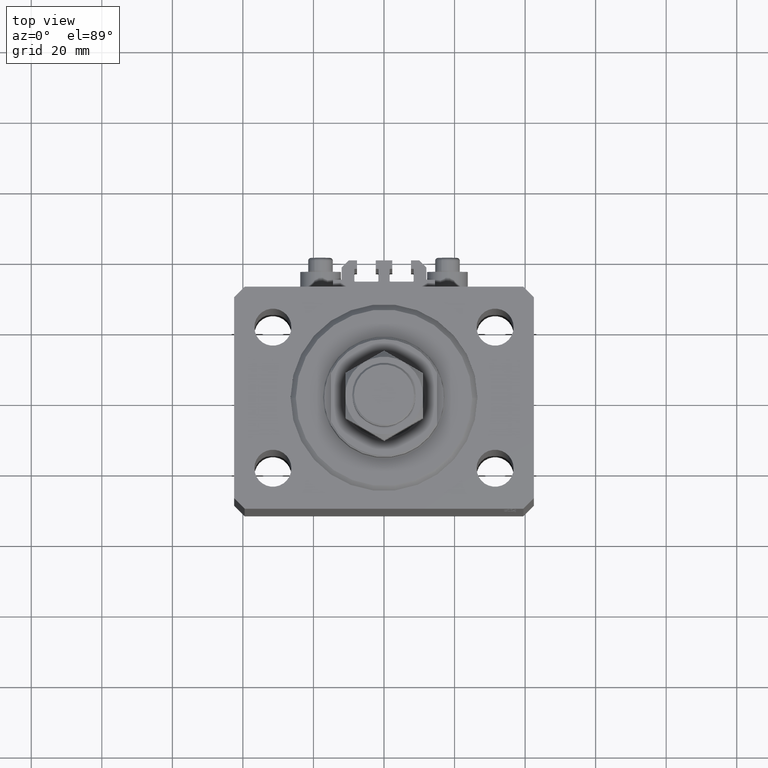
[diagram: clean part render]
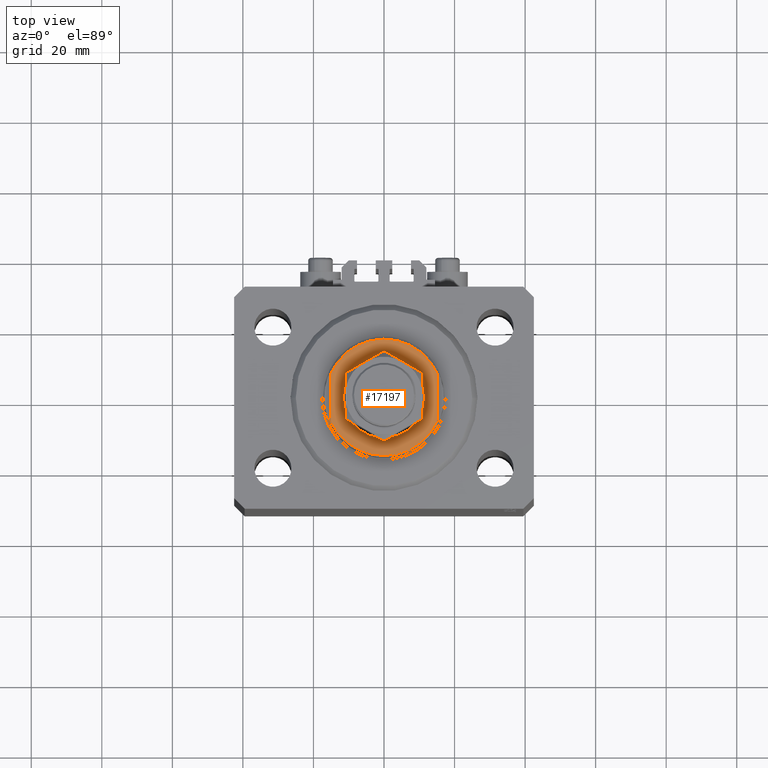
[diagram: same view with one face highlighted and labeled with its STEP entity id]
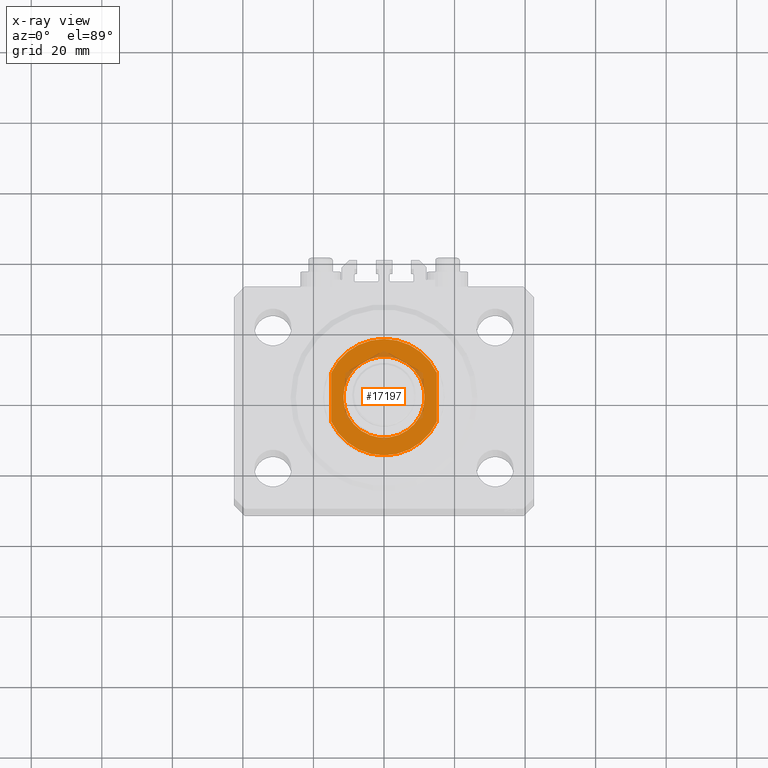
[diagram: x-ray of the same camera — body ghosted, the highlighted face saturated]
A machine part, top view. The second image highlights one B-rep face of the part: STEP entity #17197.
The next image is the same camera in x-ray: the body ghosted, the highlighted face saturated — about 5% of this face is hidden behind the body in this view.
In plain terms, the highlighted planar face has unit normal (0, 0, 1).
Its self-contained STEP definition (entity closure, byte-faithful):
#188 = VERTEX_POINT ( 'NONE', #20913 ) ;
#706 = CIRCLE ( 'NONE', #24448, 16.50000000000000711 ) ;
#1455 = LINE ( 'NONE', #38425, #11936 ) ;
#4946 = DIRECTION ( 'NONE',  ( -0.000000000000000000, -1.000000000000000000, -0.000000000000000000 ) ) ;
#5541 = PLANE ( 'NONE',  #30244 ) ;
#5696 = CIRCLE ( 'NONE', #28672, 16.50000000000000711 ) ;
#6077 = DIRECTION ( 'NONE',  ( -1.000000000000000000, 0.000000000000000000, 0.000000000000000000 ) ) ;
#6863 = DIRECTION ( 'NONE',  ( -1.000000000000000000, 0.000000000000000000, 0.000000000000000000 ) ) ;
#8936 = ORIENTED_EDGE ( 'NONE', *, *, #30583, .T. ) ;
#10304 = ORIENTED_EDGE ( 'NONE', *, *, #39582, .F. ) ;
#11936 = VECTOR ( 'NONE', #4946, 1000.000000000000000 ) ;
#12847 = AXIS2_PLACEMENT_3D ( 'NONE', #43012, #19481, #31142 ) ;
#13210 = ORIENTED_EDGE ( 'NONE', *, *, #26851, .T. ) ;
#13747 = EDGE_CURVE ( 'NONE', #188, #27125, #5696, .T. ) ;
#13831 = ORIENTED_EDGE ( 'NONE', *, *, #13747, .T. ) ;
#14323 = CARTESIAN_POINT ( 'NONE',  ( 0.000000000000000000, 0.000000000000000000, -7.000000000000000000 ) ) ;
#14549 = CARTESIAN_POINT ( 'NONE',  ( 0.000000000000000000, 0.000000000000000000, -7.000000000000000000 ) ) ;
#15882 = CARTESIAN_POINT ( 'NONE',  ( 14.99999999999999645, -6.873863542433781504, -7.000000000000000000 ) ) ;
#15905 = CARTESIAN_POINT ( 'NONE',  ( 15.00000000000000000, -42.42640687119285303, -7.000000000000000000 ) ) ;
#17177 = FACE_BOUND ( 'NONE', #28839, .T. ) ;
#17197 = ADVANCED_FACE ( 'NONE', ( #17177, #28601 ), #5541, .T. ) ;
#19481 = DIRECTION ( 'NONE',  ( -0.000000000000000000, -0.000000000000000000, 1.000000000000000000 ) ) ;
#20913 = CARTESIAN_POINT ( 'NONE',  ( -14.99999999999999645, 6.873863542433781504, -7.000000000000000000 ) ) ;
#22263 = DIRECTION ( 'NONE',  ( -1.000000000000000000, 0.000000000000000000, 0.000000000000000000 ) ) ;
#22650 = EDGE_CURVE ( 'NONE', #44000, #40724, #36569, .T. ) ;
#23183 = CARTESIAN_POINT ( 'NONE',  ( -11.49999999999999645, 0.000000000000000000, -7.000000000000000000 ) ) ;
#24448 = AXIS2_PLACEMENT_3D ( 'NONE', #26681, #28647, #6077 ) ;
#24868 = ORIENTED_EDGE ( 'NONE', *, *, #22650, .T. ) ;
#25360 = EDGE_LOOP ( 'NONE', ( #13831, #26289, #8936, #10304 ) ) ;
#26289 = ORIENTED_EDGE ( 'NONE', *, *, #40521, .T. ) ;
#26681 = CARTESIAN_POINT ( 'NONE',  ( 0.000000000000000000, 0.000000000000000000, -7.000000000000000000 ) ) ;
#26851 = EDGE_CURVE ( 'NONE', #40724, #44000, #32642, .T. ) ;
#27125 = VERTEX_POINT ( 'NONE', #30521 ) ;
#27602 = DIRECTION ( 'NONE',  ( 0.000000000000000000, 0.000000000000000000, -1.000000000000000000 ) ) ;
#28105 = DIRECTION ( 'NONE',  ( -1.000000000000000000, 0.000000000000000000, -0.000000000000000000 ) ) ;
#28601 = FACE_OUTER_BOUND ( 'NONE', #25360, .T. ) ;
#28647 = DIRECTION ( 'NONE',  ( 0.000000000000000000, 0.000000000000000000, -1.000000000000000000 ) ) ;
#28672 = AXIS2_PLACEMENT_3D ( 'NONE', #14323, #48272, #22263 ) ;
#28839 = EDGE_LOOP ( 'NONE', ( #24868, #13210 ) ) ;
#30244 = AXIS2_PLACEMENT_3D ( 'NONE', #39245, #27602, #28105 ) ;
#30521 = CARTESIAN_POINT ( 'NONE',  ( 14.99999999999999645, 6.873863542433781504, -7.000000000000000000 ) ) ;
#30583 = EDGE_CURVE ( 'NONE', #32492, #48464, #706, .T. ) ;
#31142 = DIRECTION ( 'NONE',  ( -1.000000000000000000, 0.000000000000000000, 0.000000000000000000 ) ) ;
#32492 = VERTEX_POINT ( 'NONE', #15882 ) ;
#32642 = CIRCLE ( 'NONE', #12847, 11.49999999999999645 ) ;
#36569 = CIRCLE ( 'NONE', #38920, 11.49999999999999645 ) ;
#37471 = CARTESIAN_POINT ( 'NONE',  ( 11.49999999999999645, 1.408343819019455781E-15, -7.000000000000000000 ) ) ;
#38425 = CARTESIAN_POINT ( 'NONE',  ( -15.00000000000000000, -42.42640687119285303, -7.000000000000000000 ) ) ;
#38470 = LINE ( 'NONE', #15905, #39629 ) ;
#38920 = AXIS2_PLACEMENT_3D ( 'NONE', #14549, #44776, #6863 ) ;
#38957 = DIRECTION ( 'NONE',  ( 0.000000000000000000, -1.000000000000000000, -0.000000000000000000 ) ) ;
#39245 = CARTESIAN_POINT ( 'NONE',  ( 0.000000000000000000, 0.000000000000000000, -7.000000000000000000 ) ) ;
#39582 = EDGE_CURVE ( 'NONE', #188, #48464, #1455, .T. ) ;
#39629 = VECTOR ( 'NONE', #38957, 1000.000000000000000 ) ;
#40521 = EDGE_CURVE ( 'NONE', #27125, #32492, #38470, .T. ) ;
#40583 = CARTESIAN_POINT ( 'NONE',  ( -15.00000000000000000, -6.873863542433783280, -7.000000000000000000 ) ) ;
#40724 = VERTEX_POINT ( 'NONE', #37471 ) ;
#43012 = CARTESIAN_POINT ( 'NONE',  ( 0.000000000000000000, 0.000000000000000000, -7.000000000000000000 ) ) ;
#44000 = VERTEX_POINT ( 'NONE', #23183 ) ;
#44776 = DIRECTION ( 'NONE',  ( -0.000000000000000000, -0.000000000000000000, 1.000000000000000000 ) ) ;
#48272 = DIRECTION ( 'NONE',  ( 0.000000000000000000, 0.000000000000000000, -1.000000000000000000 ) ) ;
#48464 = VERTEX_POINT ( 'NONE', #40583 ) ;